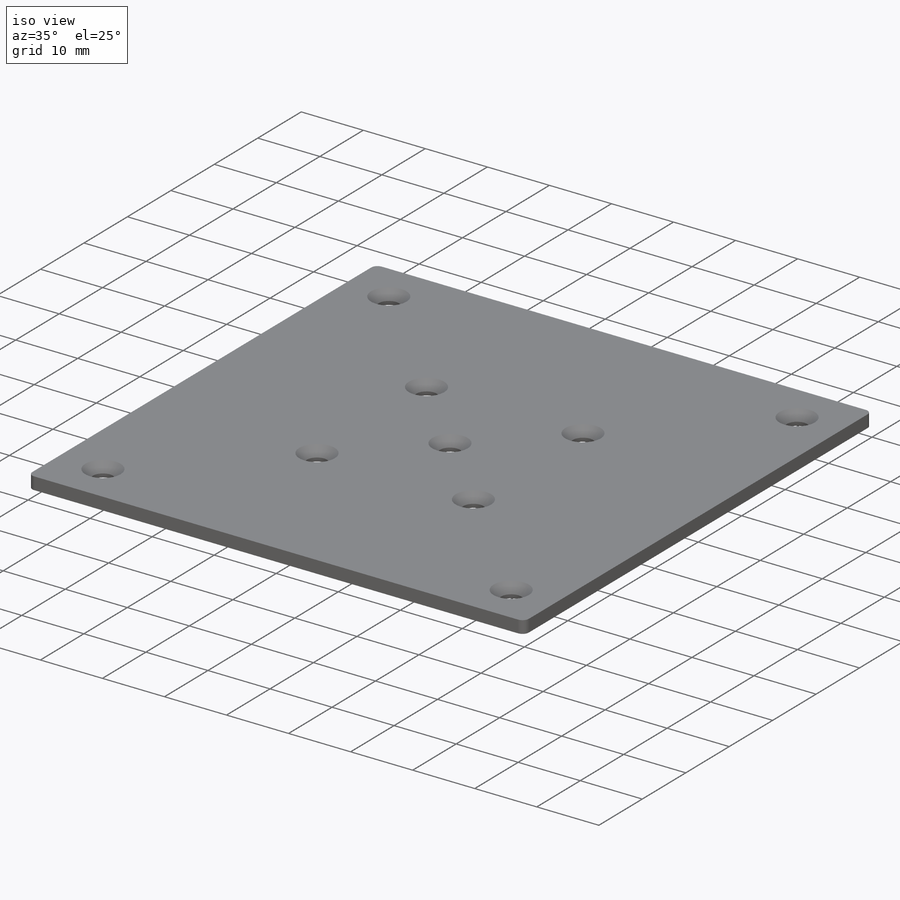
[diagram: iso view]
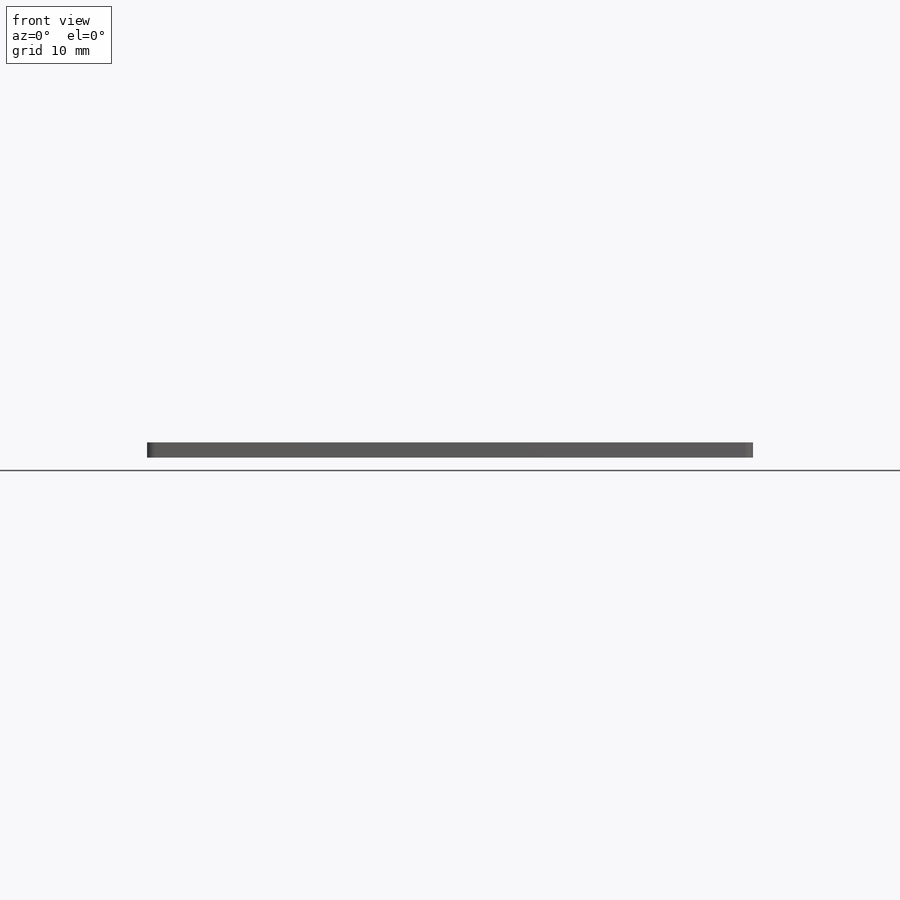
[diagram: front view]
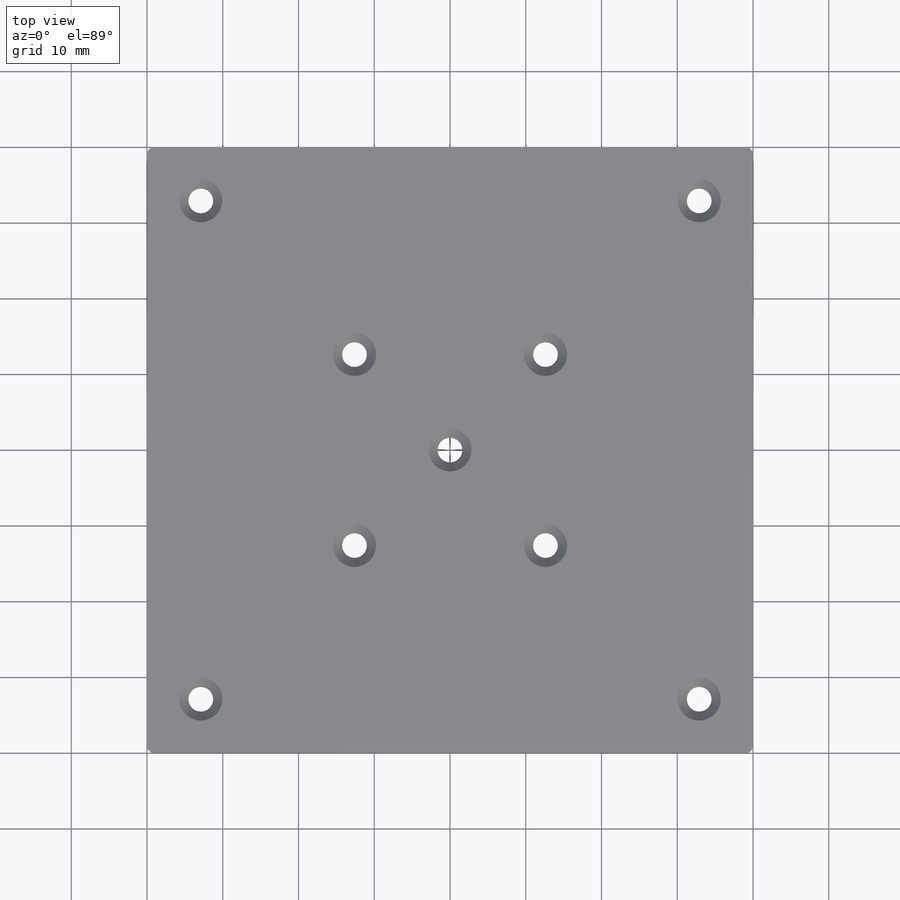
[diagram: top view]
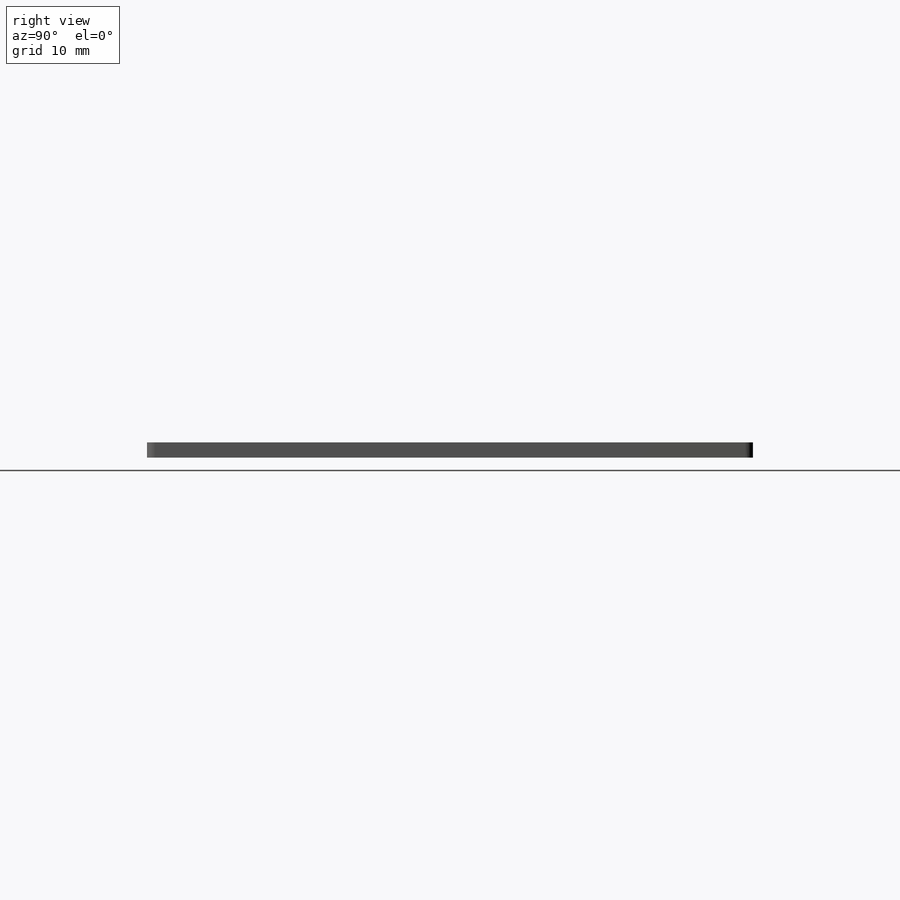
[diagram: right view]
SOLIDWORKS PART (.sldprt)
format: sldprt  version: not decoded by parser v0  size: 256,000 bytes
history: native  units: mm
features: sketch x8, plane x3, hole x3, fillet x2, material x1, extrude x1 (+8 scaffold rows collapsed)
feature tree (26):
  scaffold x8  (default folders/planes/origin — collapsed)
  material  "Matériau <non spécifié>"
  plane  "Plan de face"
  plane  "Plan de dessus"
  plane  "Plan de droite"
  sketch  "Esquisse1"  dims[D1=80.0mm D2=80.0mm]
  extrude  "Boss.-Extru.1"  Depth=2mm
  sketch  "Esquisse2"
  hole  "Fraisage pour vis à tête fraisée bombée #41"  Diameter=3.2639mm Depth=2mm
  sketch  "Esquisse5"
  sketch  "Esquisse3"  dims[hole-wizard template sketch: 54 standard entries collapsed; hole parameters kept: c17.Diamètre du perçage jusqu'au prochain=3.2639mm c17.Profondeur du perçage jusqu'au prochain=2.0mm c17.Diamètre du fraisage entrant=5.715mm c17.D4=~3.666174mm c17.Angle du fraisage entrant=82.0deg]
  hole  "Fraisage pour vis à tête fraisée bombée #42"  Diameter=3.2639mm Depth=2mm
  sketch  "Esquisse7"
  sketch  "Esquisse6"  dims[hole-wizard template sketch: 54 standard entries collapsed; hole parameters kept: c17.Diamètre du perçage jusqu'au prochain=3.2639mm c17.Profondeur du perçage jusqu'au prochain=2.0mm c17.Diamètre du fraisage entrant=5.715mm c17.D4=~3.666174mm c17.Angle du fraisage entrant=82.0deg]
  hole  "Fraisage pour vis à tête fraisée bombée #43"  Diameter=3.2639mm Depth=2mm
  sketch  "Esquisse9"
  sketch  "Esquisse8"  dims[hole-wizard template sketch: 54 standard entries collapsed; hole parameters kept: c17.Diamètre du perçage jusqu'au prochain=3.2639mm c17.Profondeur du perçage jusqu'au prochain=2.0mm c17.Diamètre du fraisage entrant=5.715mm c17.D4=~3.666174mm c17.Angle du fraisage entrant=82.0deg]
  fillet  "Congé1"  Radius=1mm
  fillet  "Congé2"  Radius=1mm
decode coverage: 10 of 14 modeling features carry decoded parameters
note: ~ marks probable driven/reference dimensions
note: suppression state not decoded; provenance and decode notes live in map.json
